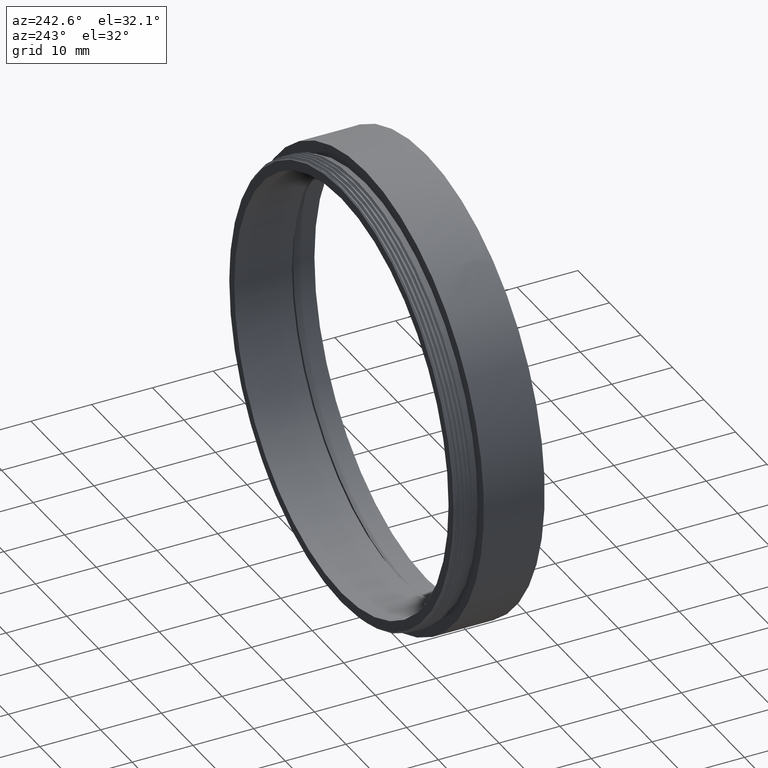
[diagram: clean part render]
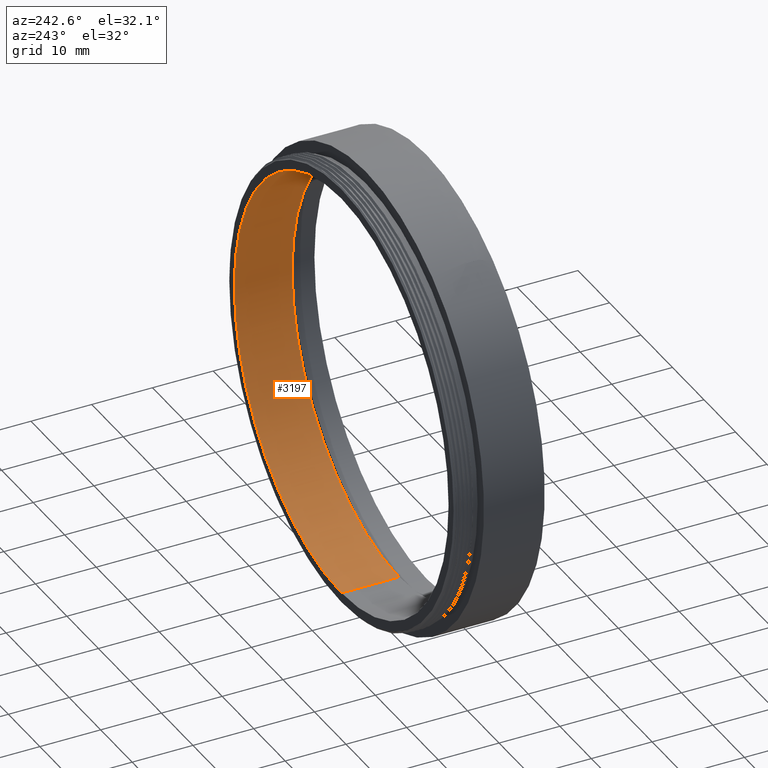
[diagram: same view with one face highlighted and labeled with its STEP entity id]
A machine part, auxiliary view. The second image highlights one B-rep face of the part: STEP entity #3197.
In plain terms, the highlighted cylindrical surface (partial cylindrical patch) has radius 34 mm, axis along (-0, -1, -0).
Its self-contained STEP definition (entity closure, byte-faithful):
#205 = CIRCLE ( 'NONE', #3646, 34.00000000000002842 ) ;
#307 = ORIENTED_EDGE ( 'NONE', *, *, #6053, .T. ) ;
#384 = ORIENTED_EDGE ( 'NONE', *, *, #386, .F. ) ;
#386 = EDGE_CURVE ( 'NONE', #15839, #2481, #12137, .T. ) ;
#729 = EDGE_CURVE ( 'NONE', #15839, #3401, #15733, .T. ) ;
#2481 = VERTEX_POINT ( 'NONE', #8703 ) ;
#3197 = ADVANCED_FACE ( 'NONE', ( #5669 ), #9569, .F. ) ;
#3365 = CARTESIAN_POINT ( 'NONE',  ( 0.0000000000000000000, 0.0000000000000000000, 0.0000000000000000000 ) ) ;
#3385 = AXIS2_PLACEMENT_3D ( 'NONE', #3365, #7086, #7002 ) ;
#3401 = VERTEX_POINT ( 'NONE', #12879 ) ;
#3646 = AXIS2_PLACEMENT_3D ( 'NONE', #3941, #10639, #4018 ) ;
#3659 = ORIENTED_EDGE ( 'NONE', *, *, #729, .T. ) ;
#3941 = CARTESIAN_POINT ( 'NONE',  ( 0.0000000000000000000, 5.701941862067100075, 0.0000000000000000000 ) ) ;
#4018 = DIRECTION ( 'NONE',  ( 0.0000000000000000000, 0.0000000000000000000, -1.000000000000000000 ) ) ;
#4360 = CARTESIAN_POINT ( 'NONE',  ( 0.0000000000000000000, 0.0000000000000000000, -34.00000000000002842 ) ) ;
#4375 = CARTESIAN_POINT ( 'NONE',  ( 0.0000000000000000000, 15.20194186206709297, -34.00000000000002842 ) ) ;
#5377 = DIRECTION ( 'NONE',  ( 0.0000000000000000000, 0.0000000000000000000, -1.000000000000000000 ) ) ;
#5669 = FACE_OUTER_BOUND ( 'NONE', #6055, .T. ) ;
#6053 = EDGE_CURVE ( 'NONE', #3401, #14752, #205, .T. ) ;
#6055 = EDGE_LOOP ( 'NONE', ( #15015, #384, #3659, #307 ) ) ;
#6312 = VECTOR ( 'NONE', #9408, 1000.000000000000000 ) ;
#6876 = CARTESIAN_POINT ( 'NONE',  ( 4.163799117101004504E-15, 0.0000000000000000000, 34.00000000000002842 ) ) ;
#7002 = DIRECTION ( 'NONE',  ( 0.0000000000000000000, 0.0000000000000000000, -1.000000000000000000 ) ) ;
#7086 = DIRECTION ( 'NONE',  ( -0.0000000000000000000, -1.000000000000000000, -0.0000000000000000000 ) ) ;
#8405 = EDGE_CURVE ( 'NONE', #2481, #14752, #13176, .T. ) ;
#8703 = CARTESIAN_POINT ( 'NONE',  ( 4.163799117101004504E-15, 15.20194186206709297, 34.00000000000002842 ) ) ;
#9408 = DIRECTION ( 'NONE',  ( -0.0000000000000000000, -1.000000000000000000, -0.0000000000000000000 ) ) ;
#9569 = CYLINDRICAL_SURFACE ( 'NONE', #3385, 34.00000000000002842 ) ;
#10022 = AXIS2_PLACEMENT_3D ( 'NONE', #13088, #13008, #5377 ) ;
#10639 = DIRECTION ( 'NONE',  ( -0.0000000000000000000, -1.000000000000000000, -0.0000000000000000000 ) ) ;
#12137 = CIRCLE ( 'NONE', #10022, 34.00000000000002842 ) ;
#12879 = CARTESIAN_POINT ( 'NONE',  ( 0.0000000000000000000, 5.701941862067100075, -34.00000000000002842 ) ) ;
#13008 = DIRECTION ( 'NONE',  ( -0.0000000000000000000, -1.000000000000000000, -0.0000000000000000000 ) ) ;
#13088 = CARTESIAN_POINT ( 'NONE',  ( 0.0000000000000000000, 15.20194186206709297, 0.0000000000000000000 ) ) ;
#13176 = LINE ( 'NONE', #6876, #14531 ) ;
#14531 = VECTOR ( 'NONE', #15594, 1000.000000000000000 ) ;
#14752 = VERTEX_POINT ( 'NONE', #15665 ) ;
#15015 = ORIENTED_EDGE ( 'NONE', *, *, #8405, .F. ) ;
#15594 = DIRECTION ( 'NONE',  ( -0.0000000000000000000, -1.000000000000000000, -0.0000000000000000000 ) ) ;
#15665 = CARTESIAN_POINT ( 'NONE',  ( 4.163799117101004504E-15, 5.701941862067100075, 34.00000000000002842 ) ) ;
#15733 = LINE ( 'NONE', #4360, #6312 ) ;
#15839 = VERTEX_POINT ( 'NONE', #4375 ) ;